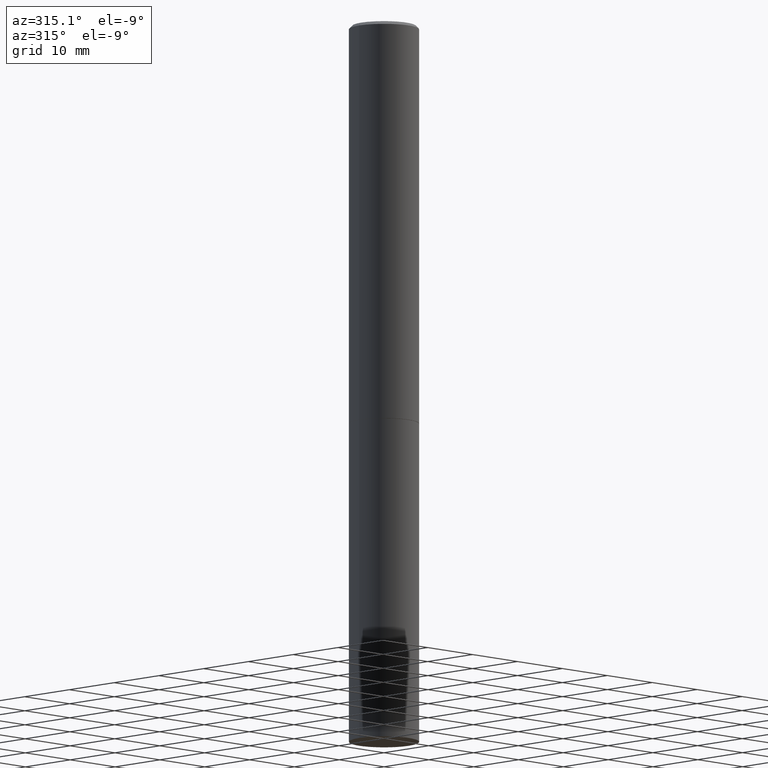
[diagram: clean part render]
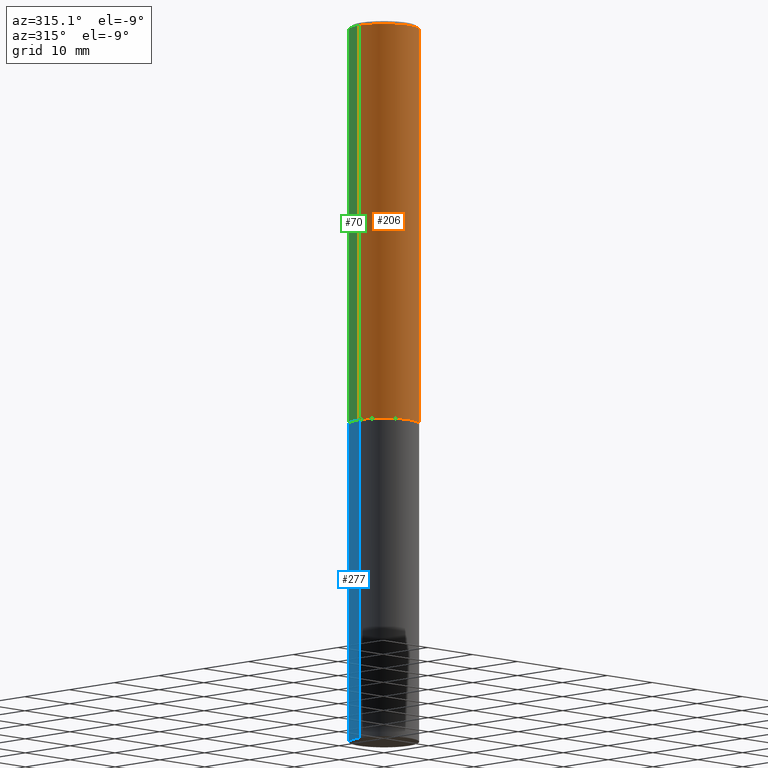
[diagram: same view with three faces highlighted in distinct colors, each labeled with its STEP entity id]
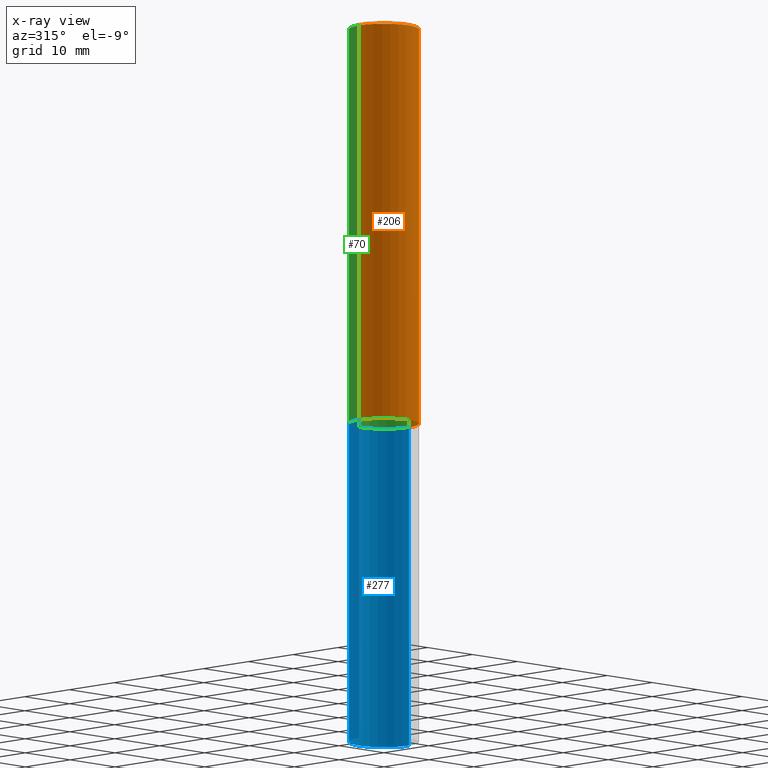
[diagram: x-ray of the same camera — body ghosted, the three highlighted faces saturated]
A machine part, auxiliary view with three faces highlighted in distinct colors.
The next image is the same camera in x-ray (body ghosted, the three faces saturated) — at least one of them is partly hidden behind the body in this view.
Their STEP definitions:

[orange] entity #206 — the highlighted cylindrical surface (edge-blend (fillet) strip) has radius 5.5562 mm, axis along (-0, 0, 1).
#13 = DIRECTION ( 'NONE',  ( 1.000000000000000000, -6.982962677686266711E-15, 4.876176775795935793E-29 ) ) ;
#22 = ORIENTED_EDGE ( 'NONE', *, *, #248, .T. ) ;
#24 = VECTOR ( 'NONE', #349, 39.37007874015748143 ) ;
#42 = LINE ( 'NONE', #100, #24 ) ;
#50 = ORIENTED_EDGE ( 'NONE', *, *, #128, .T. ) ;
#74 = VERTEX_POINT ( 'NONE', #153 ) ;
#76 = DIRECTION ( 'NONE',  ( -2.445468806185136597E-29, 3.491481338843145583E-15, 1.000000000000000000 ) ) ;
#82 = DIRECTION ( 'NONE',  ( 1.000000000000000000, -6.982962677686267499E-15, 0.000000000000000000 ) ) ;
#91 = EDGE_LOOP ( 'NONE', ( #262, #22, #50, #323 ) ) ;
#100 = CARTESIAN_POINT ( 'NONE',  ( -0.2187499999999998612, 1.554312234475218171E-15, -1.076017050993259922E-29 ) ) ;
#109 = AXIS2_PLACEMENT_3D ( 'NONE', #191, #298, #324 ) ;
#128 = EDGE_CURVE ( 'NONE', #74, #186, #295, .T. ) ;
#131 = FACE_OUTER_BOUND ( 'NONE', #91, .T. ) ;
#132 = VERTEX_POINT ( 'NONE', #220 ) ;
#144 = AXIS2_PLACEMENT_3D ( 'NONE', #230, #357, #82 ) ;
#153 = CARTESIAN_POINT ( 'NONE',  ( 0.2187500000000000000, -1.025273495151289515E-14, -2.499000000000000998 ) ) ;
#168 = VECTOR ( 'NONE', #327, 39.37007874015748143 ) ;
#174 = EDGE_CURVE ( 'NONE', #132, #186, #282, .T. ) ;
#184 = EDGE_CURVE ( 'NONE', #311, #132, #42, .T. ) ;
#186 = VERTEX_POINT ( 'NONE', #200 ) ;
#191 = CARTESIAN_POINT ( 'NONE',  ( 4.890937612370280165E-31, -6.982962677686301470E-17, -0.02000000000000003164 ) ) ;
#200 = CARTESIAN_POINT ( 'NONE',  ( 0.2187499999999997224, -1.570563563789383461E-15, -0.02000000000000003164 ) ) ;
#206 = ADVANCED_FACE ( 'NONE', ( #131 ), #322, .T. ) ;
#220 = CARTESIAN_POINT ( 'NONE',  ( -0.2187499999999997224, 1.457693458967005770E-15, -0.02000000000000003164 ) ) ;
#230 = CARTESIAN_POINT ( 'NONE',  ( 6.111226546656659252E-29, -8.725211865769023513E-15, -2.499000000000000998 ) ) ;
#248 = EDGE_CURVE ( 'NONE', #311, #74, #250, .T. ) ;
#250 = CIRCLE ( 'NONE', #144, 0.2187500000000000000 ) ;
#259 = CARTESIAN_POINT ( 'NONE',  ( 0.2187499999999998612, -1.527523085743869857E-15, 1.066663669705360324E-29 ) ) ;
#261 = CARTESIAN_POINT ( 'NONE',  ( 0.000000000000000000, 0.000000000000000000, 0.000000000000000000 ) ) ;
#262 = ORIENTED_EDGE ( 'NONE', *, *, #184, .F. ) ;
#269 = CARTESIAN_POINT ( 'NONE',  ( -0.2187500000000000000, -2.843208511797721488E-15, -2.499000000000000998 ) ) ;
#282 = CIRCLE ( 'NONE', #109, 0.2187499999999997224 ) ;
#295 = LINE ( 'NONE', #259, #168 ) ;
#298 = DIRECTION ( 'NONE',  ( -2.445468806185136597E-29, 3.491481338843145583E-15, 1.000000000000000000 ) ) ;
#303 = AXIS2_PLACEMENT_3D ( 'NONE', #261, #76, #13 ) ;
#311 = VERTEX_POINT ( 'NONE', #269 ) ;
#322 = CYLINDRICAL_SURFACE ( 'NONE', #303, 0.2187499999999998612 ) ;
#323 = ORIENTED_EDGE ( 'NONE', *, *, #174, .F. ) ;
#324 = DIRECTION ( 'NONE',  ( 1.000000000000000000, -6.982962677686266711E-15, 0.000000000000000000 ) ) ;
#327 = DIRECTION ( 'NONE',  ( -2.445468806185136877E-29, 3.491481338843145188E-15, 1.000000000000000000 ) ) ;
#349 = DIRECTION ( 'NONE',  ( -2.445468806185136877E-29, 3.491481338843145188E-15, 1.000000000000000000 ) ) ;
#357 = DIRECTION ( 'NONE',  ( -2.445468806185136597E-29, 3.491481338843145583E-15, 1.000000000000000000 ) ) ;

[blue] entity #277 — the highlighted cylindrical surface (edge-blend (fillet) strip) has radius 5.5562 mm, axis along (-0, 0, 1).
#19 = DIRECTION ( 'NONE',  ( 1.000000000000000000, -6.982962677686262766E-15, 0.000000000000000000 ) ) ;
#29 = EDGE_CURVE ( 'NONE', #387, #125, #221, .T. ) ;
#37 = ORIENTED_EDGE ( 'NONE', *, *, #253, .F. ) ;
#40 = CARTESIAN_POINT ( 'NONE',  ( 6.113672015462842613E-29, -8.728703347107864943E-15, -2.500000000000000000 ) ) ;
#41 = EDGE_LOOP ( 'NONE', ( #289, #46, #37, #141 ) ) ;
#46 = ORIENTED_EDGE ( 'NONE', *, *, #29, .T. ) ;
#58 = DIRECTION ( 'NONE',  ( -2.445468806185136597E-29, 3.491481338843145583E-15, 1.000000000000000000 ) ) ;
#71 = CARTESIAN_POINT ( 'NONE',  ( 1.100460962783311469E-28, -1.571166602479415690E-14, -4.500000000000000000 ) ) ;
#85 = DIRECTION ( 'NONE',  ( 1.000000000000000000, -6.982962677686266711E-15, 4.876176775795935232E-29 ) ) ;
#86 = AXIS2_PLACEMENT_3D ( 'NONE', #389, #58, #85 ) ;
#96 = VECTOR ( 'NONE', #118, 39.37007874015748143 ) ;
#105 = CARTESIAN_POINT ( 'NONE',  ( -0.2187500000000000000, 1.554312234475219157E-15, -1.076017050993260622E-29 ) ) ;
#113 = CARTESIAN_POINT ( 'NONE',  ( -0.2187500000000003331, -1.418414293905028211E-14, -4.500000000000000000 ) ) ;
#118 = DIRECTION ( 'NONE',  ( -2.445468806185136877E-29, 3.491481338843145188E-15, 1.000000000000000000 ) ) ;
#125 = VERTEX_POINT ( 'NONE', #320 ) ;
#133 = DIRECTION ( 'NONE',  ( -2.445468806185136597E-29, 3.491481338843145583E-15, 1.000000000000000000 ) ) ;
#134 = CIRCLE ( 'NONE', #212, 0.2187500000000000000 ) ;
#141 = ORIENTED_EDGE ( 'NONE', *, *, #336, .F. ) ;
#143 = CIRCLE ( 'NONE', #368, 0.2187500000000000000 ) ;
#150 = FACE_OUTER_BOUND ( 'NONE', #41, .T. ) ;
#162 = DIRECTION ( 'NONE',  ( -2.445468806185136597E-29, 3.491481338843145583E-15, 1.000000000000000000 ) ) ;
#172 = CARTESIAN_POINT ( 'NONE',  ( 0.2187500000000000000, -1.025622643285173500E-14, -2.500000000000000000 ) ) ;
#175 = CARTESIAN_POINT ( 'NONE',  ( 0.2187500000000003331, -1.721239996180668100E-14, -4.500000000000000000 ) ) ;
#178 = EDGE_CURVE ( 'NONE', #383, #387, #143, .T. ) ;
#194 = VERTEX_POINT ( 'NONE', #172 ) ;
#207 = CYLINDRICAL_SURFACE ( 'NONE', #86, 0.2187500000000000000 ) ;
#212 = AXIS2_PLACEMENT_3D ( 'NONE', #40, #162, #284 ) ;
#221 = LINE ( 'NONE', #105, #386 ) ;
#227 = DIRECTION ( 'NONE',  ( -2.445468806185136877E-29, 3.491481338843145188E-15, 1.000000000000000000 ) ) ;
#253 = EDGE_CURVE ( 'NONE', #194, #125, #134, .T. ) ;
#277 = ADVANCED_FACE ( 'NONE', ( #150 ), #207, .T. ) ;
#284 = DIRECTION ( 'NONE',  ( 1.000000000000000000, -6.982962677686267499E-15, 0.000000000000000000 ) ) ;
#289 = ORIENTED_EDGE ( 'NONE', *, *, #178, .T. ) ;
#304 = CARTESIAN_POINT ( 'NONE',  ( 0.2187500000000000000, -1.527523085743870843E-15, 1.066663669705360885E-29 ) ) ;
#307 = LINE ( 'NONE', #304, #96 ) ;
#320 = CARTESIAN_POINT ( 'NONE',  ( -0.2187500000000000000, -1.066587245147579176E-14, -2.500000000000000000 ) ) ;
#336 = EDGE_CURVE ( 'NONE', #383, #194, #307, .T. ) ;
#368 = AXIS2_PLACEMENT_3D ( 'NONE', #71, #133, #19 ) ;
#383 = VERTEX_POINT ( 'NONE', #175 ) ;
#386 = VECTOR ( 'NONE', #227, 39.37007874015748143 ) ;
#387 = VERTEX_POINT ( 'NONE', #113 ) ;
#389 = CARTESIAN_POINT ( 'NONE',  ( 0.000000000000000000, 0.000000000000000000, 0.000000000000000000 ) ) ;

[green] entity #70 — the highlighted cylindrical surface (edge-blend (fillet) strip) has radius 5.5562 mm, axis along (-0, 0, 1).
#12 = ORIENTED_EDGE ( 'NONE', *, *, #184, .T. ) ;
#24 = VECTOR ( 'NONE', #349, 39.37007874015748143 ) ;
#25 = CYLINDRICAL_SURFACE ( 'NONE', #249, 0.2187499999999998612 ) ;
#42 = LINE ( 'NONE', #100, #24 ) ;
#47 = DIRECTION ( 'NONE',  ( 1.000000000000000000, -6.982962677686266711E-15, 0.000000000000000000 ) ) ;
#66 = DIRECTION ( 'NONE',  ( -2.445468806185136597E-29, 3.491481338843145583E-15, 1.000000000000000000 ) ) ;
#70 = ADVANCED_FACE ( 'NONE', ( #176 ), #25, .T. ) ;
#74 = VERTEX_POINT ( 'NONE', #153 ) ;
#88 = DIRECTION ( 'NONE',  ( -2.445468806185136597E-29, 3.491481338843145583E-15, 1.000000000000000000 ) ) ;
#89 = AXIS2_PLACEMENT_3D ( 'NONE', #347, #226, #47 ) ;
#100 = CARTESIAN_POINT ( 'NONE',  ( -0.2187499999999998612, 1.554312234475218171E-15, -1.076017050993259922E-29 ) ) ;
#128 = EDGE_CURVE ( 'NONE', #74, #186, #295, .T. ) ;
#132 = VERTEX_POINT ( 'NONE', #220 ) ;
#136 = EDGE_CURVE ( 'NONE', #186, #132, #182, .T. ) ;
#148 = CARTESIAN_POINT ( 'NONE',  ( 6.111226546656659252E-29, -8.725211865769023513E-15, -2.499000000000000998 ) ) ;
#153 = CARTESIAN_POINT ( 'NONE',  ( 0.2187500000000000000, -1.025273495151289515E-14, -2.499000000000000998 ) ) ;
#168 = VECTOR ( 'NONE', #327, 39.37007874015748143 ) ;
#170 = AXIS2_PLACEMENT_3D ( 'NONE', #148, #88, #329 ) ;
#176 = FACE_OUTER_BOUND ( 'NONE', #192, .T. ) ;
#182 = CIRCLE ( 'NONE', #89, 0.2187499999999997224 ) ;
#184 = EDGE_CURVE ( 'NONE', #311, #132, #42, .T. ) ;
#186 = VERTEX_POINT ( 'NONE', #200 ) ;
#188 = DIRECTION ( 'NONE',  ( 1.000000000000000000, -6.982962677686266711E-15, 4.876176775795935793E-29 ) ) ;
#192 = EDGE_LOOP ( 'NONE', ( #355, #12, #291, #325 ) ) ;
#200 = CARTESIAN_POINT ( 'NONE',  ( 0.2187499999999997224, -1.570563563789383461E-15, -0.02000000000000003164 ) ) ;
#204 = CARTESIAN_POINT ( 'NONE',  ( 0.000000000000000000, 0.000000000000000000, 0.000000000000000000 ) ) ;
#220 = CARTESIAN_POINT ( 'NONE',  ( -0.2187499999999997224, 1.457693458967005770E-15, -0.02000000000000003164 ) ) ;
#226 = DIRECTION ( 'NONE',  ( -2.445468806185136597E-29, 3.491481338843145583E-15, 1.000000000000000000 ) ) ;
#249 = AXIS2_PLACEMENT_3D ( 'NONE', #204, #66, #188 ) ;
#259 = CARTESIAN_POINT ( 'NONE',  ( 0.2187499999999998612, -1.527523085743869857E-15, 1.066663669705360324E-29 ) ) ;
#269 = CARTESIAN_POINT ( 'NONE',  ( -0.2187500000000000000, -2.843208511797721488E-15, -2.499000000000000998 ) ) ;
#291 = ORIENTED_EDGE ( 'NONE', *, *, #136, .F. ) ;
#295 = LINE ( 'NONE', #259, #168 ) ;
#311 = VERTEX_POINT ( 'NONE', #269 ) ;
#325 = ORIENTED_EDGE ( 'NONE', *, *, #128, .F. ) ;
#327 = DIRECTION ( 'NONE',  ( -2.445468806185136877E-29, 3.491481338843145188E-15, 1.000000000000000000 ) ) ;
#329 = DIRECTION ( 'NONE',  ( 1.000000000000000000, -6.982962677686267499E-15, 0.000000000000000000 ) ) ;
#338 = CIRCLE ( 'NONE', #170, 0.2187500000000000000 ) ;
#347 = CARTESIAN_POINT ( 'NONE',  ( 4.890937612370280165E-31, -6.982962677686301470E-17, -0.02000000000000003164 ) ) ;
#349 = DIRECTION ( 'NONE',  ( -2.445468806185136877E-29, 3.491481338843145188E-15, 1.000000000000000000 ) ) ;
#355 = ORIENTED_EDGE ( 'NONE', *, *, #365, .T. ) ;
#365 = EDGE_CURVE ( 'NONE', #74, #311, #338, .T. ) ;